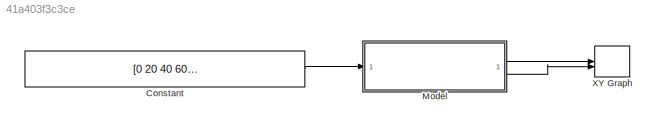
MODEL slx_41a403f3c3ce
KIND model
CONFIG AbsTol = auto
CONFIG EnableMultiTasking = off
CONFIG FixedStep = auto
CONFIG MaxStep = auto
CONFIG MinStep = auto
CONFIG RelTol = 1e-3
CONFIG SampleTimeConstraint = Unconstrained
CONFIG SolverName = VariableStepAuto
CONFIG StartTime = 0.0
CONFIG StopTime = 30
BLOCK [Constant] Constant
  Value = [0 20 40 60 80 100 120 140 160 180 200;0 10 20 20 10 0 -10 -20 -20 -10 0]
BLOCK [ModelReference] Model
  CopyOfModelProtected = on
  ModelNameDialog = MaskAndControl.slxp
  ModelReferenceVersion = 1.22
BLOCK [Record] XY Graph
  CompatibilityTag = XY
  FileSettingsInternal = {"entries":[{"content":{"excelSettings":{"content":{},"type":"Streamout.ExcelSettings"}},"type":"Streamout.FileSettingStorage","uuid":""}],"packageUris":["http:\/\/schema.mathworks.com\/mf0\/streamout_blocks\/R2020a"],"version":"1.0"}
  Layout = [1 1]
  SignalsInternal = {"entries":[{"content":{"signals":[{"content":{"blockPath":[],"dimensions":[1],"domain":"","lineColor":"#a2142f","plots":[1],"port":1,"sid":[""],"signalID":1815,"signalName":"Model:1"},"type":"RecordBlkView.Signal","uuid":""},{"content":{"blockPath":[],"dimensions":[1],"domain":"","lineColor":"#139fff","plots":[1],"port":2,"sid":[""],"signalID":1819,"signalName":"Model:2"},"type":"RecordBlkView.Si...<+162ch>
  VisualizationBindings = {"xyplotplugin":{"info":[{"series":[{"bindingParametersList":[{"parameter":"X-Axis","signalID":1815,"signalName":"Model:1"},{"parameter":"Y-Axis","signalID":1819,"signalName":"Model:2"}],"seriesID":13821}],"subplotID":1}]}}
LINE Constant:1 -> Model:1
LINE Model:1 -> XY Graph:1
LINE Model:2 -> XY Graph:2
